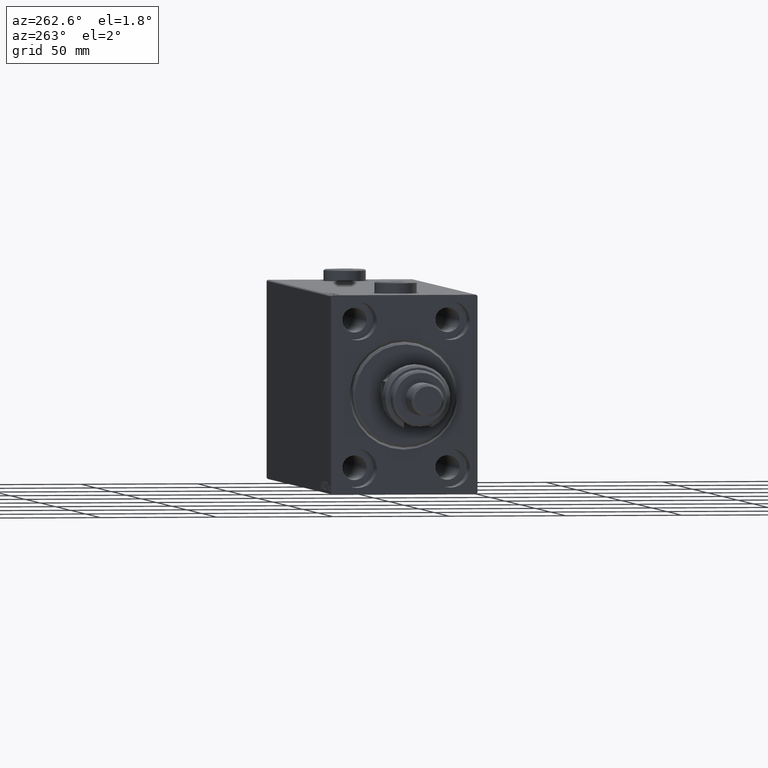
[diagram: clean part render]
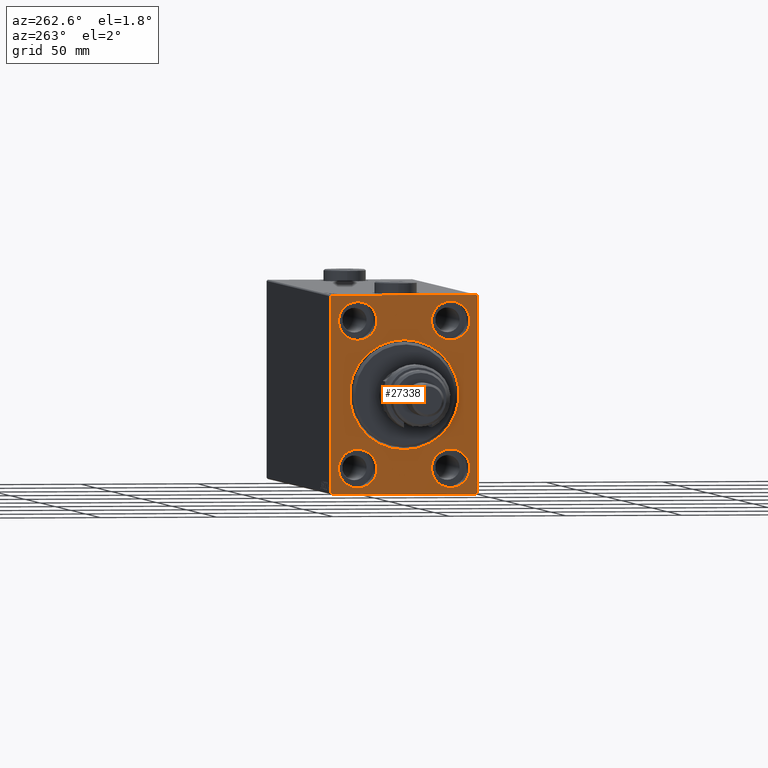
[diagram: same view with one face highlighted and labeled with its STEP entity id]
A machine part, auxiliary view. The second image highlights one B-rep face of the part: STEP entity #27338.
In plain terms, the highlighted planar face has unit normal (1, 0, 0).
Its self-contained STEP definition (entity closure, byte-faithful):
#203 = DIRECTION ( 'NONE',  ( -1.000000000000000000, 0.000000000000000000, 0.000000000000000000 ) ) ;
#293 = VERTEX_POINT ( 'NONE', #33978 ) ;
#399 = EDGE_CURVE ( 'NONE', #36126, #10296, #12822, .T. ) ;
#405 = CIRCLE ( 'NONE', #39155, 23.50000000000004619 ) ;
#589 = VERTEX_POINT ( 'NONE', #38031 ) ;
#735 = DIRECTION ( 'NONE',  ( 0.000000000000000000, -1.000000000000000000, -2.202823461557850341E-16 ) ) ;
#756 = CARTESIAN_POINT ( 'NONE',  ( 0.000000000000000000, -31.50000000000000000, 41.99999999999999289 ) ) ;
#989 = LINE ( 'NONE', #756, #32161 ) ;
#1045 = DIRECTION ( 'NONE',  ( -1.000000000000000000, 0.000000000000000000, 0.000000000000000000 ) ) ;
#1162 = AXIS2_PLACEMENT_3D ( 'NONE', #41112, #34301, #19476 ) ;
#1207 = FACE_OUTER_BOUND ( 'NONE', #15142, .T. ) ;
#2451 = CARTESIAN_POINT ( 'NONE',  ( 0.000000000000000000, 31.00000000000000000, 42.50000000000000711 ) ) ;
#2563 = EDGE_LOOP ( 'NONE', ( #8548, #21582 ) ) ;
#2828 = EDGE_CURVE ( 'NONE', #29949, #8587, #8355, .T. ) ;
#3185 = ORIENTED_EDGE ( 'NONE', *, *, #21572, .T. ) ;
#3813 = DIRECTION ( 'NONE',  ( 0.000000000000000000, 1.000000000000000000, 0.000000000000000000 ) ) ;
#3814 = CARTESIAN_POINT ( 'NONE',  ( 0.000000000000000000, 31.00000000000000000, 42.50000000000000711 ) ) ;
#3982 = DIRECTION ( 'NONE',  ( 0.000000000000000000, 0.000000000000000000, 1.000000000000000000 ) ) ;
#4598 = VECTOR ( 'NONE', #3813, 1000.000000000000000 ) ;
#5013 = AXIS2_PLACEMENT_3D ( 'NONE', #28249, #6650, #25577 ) ;
#5981 = CARTESIAN_POINT ( 'NONE',  ( 0.000000000000000000, -31.50000000000000000, 41.99999999999999289 ) ) ;
#6068 = AXIS2_PLACEMENT_3D ( 'NONE', #16097, #8827, #45745 ) ;
#6070 = CIRCLE ( 'NONE', #33214, 8.250000000000000000 ) ;
#6180 = DIRECTION ( 'NONE',  ( 1.000000000000000000, 0.000000000000000000, 0.000000000000000000 ) ) ;
#6650 = DIRECTION ( 'NONE',  ( -1.000000000000000000, 0.000000000000000000, 0.000000000000000000 ) ) ;
#6817 = EDGE_CURVE ( 'NONE', #33745, #17738, #42586, .T. ) ;
#6945 = ORIENTED_EDGE ( 'NONE', *, *, #29003, .F. ) ;
#7007 = ORIENTED_EDGE ( 'NONE', *, *, #399, .F. ) ;
#7136 = DIRECTION ( 'NONE',  ( -0.000000000000000000, -0.7071067811865474617, 0.7071067811865474617 ) ) ;
#7291 = VERTEX_POINT ( 'NONE', #12604 ) ;
#8207 = CARTESIAN_POINT ( 'NONE',  ( 0.000000000000000000, 19.99999999999999645, -31.49999999999999289 ) ) ;
#8256 = DIRECTION ( 'NONE',  ( -1.000000000000000000, 0.000000000000000000, 0.000000000000000000 ) ) ;
#8355 = CIRCLE ( 'NONE', #42465, 8.249999999999992895 ) ;
#8393 = AXIS2_PLACEMENT_3D ( 'NONE', #8207, #203, #44634 ) ;
#8548 = ORIENTED_EDGE ( 'NONE', *, *, #6817, .F. ) ;
#8587 = VERTEX_POINT ( 'NONE', #24162 ) ;
#8613 = EDGE_LOOP ( 'NONE', ( #23670, #27057 ) ) ;
#8827 = DIRECTION ( 'NONE',  ( -1.000000000000000000, 0.000000000000000000, 0.000000000000000000 ) ) ;
#8983 = FACE_BOUND ( 'NONE', #8613, .T. ) ;
#9410 = VERTEX_POINT ( 'NONE', #42624 ) ;
#9726 = VERTEX_POINT ( 'NONE', #3814 ) ;
#10296 = VERTEX_POINT ( 'NONE', #36720 ) ;
#11022 = CARTESIAN_POINT ( 'NONE',  ( 0.000000000000000000, 20.00000000000000355, 31.50000000000000000 ) ) ;
#12135 = LINE ( 'NONE', #34007, #23804 ) ;
#12583 = LINE ( 'NONE', #31522, #41473 ) ;
#12604 = CARTESIAN_POINT ( 'NONE',  ( 0.000000000000000000, -31.50000000000000000, -42.00000000000000711 ) ) ;
#12619 = DIRECTION ( 'NONE',  ( 0.000000000000000000, 0.000000000000000000, -1.000000000000000000 ) ) ;
#12822 = LINE ( 'NONE', #35423, #18356 ) ;
#13825 = CIRCLE ( 'NONE', #6068, 8.249999999999992895 ) ;
#13899 = VERTEX_POINT ( 'NONE', #30514 ) ;
#13918 = AXIS2_PLACEMENT_3D ( 'NONE', #41999, #8256, #19171 ) ;
#14039 = VERTEX_POINT ( 'NONE', #5981 ) ;
#14664 = AXIS2_PLACEMENT_3D ( 'NONE', #30429, #1045, #3982 ) ;
#15142 = EDGE_LOOP ( 'NONE', ( #45192, #19046, #34261, #31589, #7007, #3185, #31913, #28680 ) ) ;
#15404 = VERTEX_POINT ( 'NONE', #21651 ) ;
#15762 = FACE_BOUND ( 'NONE', #41410, .T. ) ;
#15931 = CARTESIAN_POINT ( 'NONE',  ( 0.000000000000000000, 31.50000000000001421, -42.00000000000000711 ) ) ;
#15942 = EDGE_CURVE ( 'NONE', #24186, #7291, #44276, .T. ) ;
#16097 = CARTESIAN_POINT ( 'NONE',  ( 0.000000000000000000, -19.99999999999999645, 31.50000000000000000 ) ) ;
#17454 = CIRCLE ( 'NONE', #1162, 23.50000000000004619 ) ;
#17738 = VERTEX_POINT ( 'NONE', #45072 ) ;
#18155 = CARTESIAN_POINT ( 'NONE',  ( 0.000000000000000000, -31.50000000000000000, 42.49999999999999289 ) ) ;
#18356 = VECTOR ( 'NONE', #42939, 1000.000000000000000 ) ;
#18935 = CIRCLE ( 'NONE', #5013, 8.250000000000000000 ) ;
#19028 = VERTEX_POINT ( 'NONE', #46191 ) ;
#19046 = ORIENTED_EDGE ( 'NONE', *, *, #21230, .T. ) ;
#19171 = DIRECTION ( 'NONE',  ( 0.000000000000000000, 0.000000000000000000, 1.000000000000000000 ) ) ;
#19315 = VECTOR ( 'NONE', #33463, 1000.000000000000000 ) ;
#19476 = DIRECTION ( 'NONE',  ( 0.000000000000000000, 0.000000000000000000, -1.000000000000000000 ) ) ;
#19619 = DIRECTION ( 'NONE',  ( 0.000000000000000000, -0.7071067811865474617, -0.7071067811865474617 ) ) ;
#19900 = FACE_BOUND ( 'NONE', #2563, .T. ) ;
#19930 = CARTESIAN_POINT ( 'NONE',  ( 0.000000000000000000, 20.00000000000000355, 31.50000000000000000 ) ) ;
#20899 = CIRCLE ( 'NONE', #13918, 8.250000000000000000 ) ;
#21230 = EDGE_CURVE ( 'NONE', #14039, #28282, #989, .T. ) ;
#21572 = EDGE_CURVE ( 'NONE', #36126, #25426, #12583, .T. ) ;
#21582 = ORIENTED_EDGE ( 'NONE', *, *, #29653, .F. ) ;
#21651 = CARTESIAN_POINT ( 'NONE',  ( 0.000000000000000000, -20.00000000000000355, -39.74999999999999289 ) ) ;
#22241 = EDGE_LOOP ( 'NONE', ( #45085, #26752 ) ) ;
#22283 = AXIS2_PLACEMENT_3D ( 'NONE', #34971, #41769, #12619 ) ;
#22294 = LINE ( 'NONE', #18155, #19315 ) ;
#22414 = VECTOR ( 'NONE', #42530, 1000.000000000000114 ) ;
#22739 = CARTESIAN_POINT ( 'NONE',  ( 0.000000000000000000, -31.50000000000000000, -42.50000000000000711 ) ) ;
#23339 = DIRECTION ( 'NONE',  ( -1.000000000000000000, 0.000000000000000000, 0.000000000000000000 ) ) ;
#23670 = ORIENTED_EDGE ( 'NONE', *, *, #39731, .T. ) ;
#23735 = DIRECTION ( 'NONE',  ( -1.000000000000000000, 0.000000000000000000, 0.000000000000000000 ) ) ;
#23804 = VECTOR ( 'NONE', #735, 1000.000000000000000 ) ;
#24162 = CARTESIAN_POINT ( 'NONE',  ( 0.000000000000000000, 20.00000000000000355, 39.74999999999999289 ) ) ;
#24186 = VERTEX_POINT ( 'NONE', #33125 ) ;
#24366 = VECTOR ( 'NONE', #7136, 1000.000000000000114 ) ;
#24452 = DIRECTION ( 'NONE',  ( 0.000000000000000000, 0.000000000000000000, 1.000000000000000000 ) ) ;
#25426 = VERTEX_POINT ( 'NONE', #39340 ) ;
#25577 = DIRECTION ( 'NONE',  ( 0.000000000000000000, 0.000000000000000000, 1.000000000000000000 ) ) ;
#25585 = CARTESIAN_POINT ( 'NONE',  ( 0.000000000000000000, -31.00000000000000000, -42.50000000000000711 ) ) ;
#25823 = DIRECTION ( 'NONE',  ( -1.000000000000000000, 0.000000000000000000, 0.000000000000000000 ) ) ;
#26694 = FACE_BOUND ( 'NONE', #46599, .T. ) ;
#26752 = ORIENTED_EDGE ( 'NONE', *, *, #47818, .F. ) ;
#26973 = AXIS2_PLACEMENT_3D ( 'NONE', #11022, #25823, #40641 ) ;
#27057 = ORIENTED_EDGE ( 'NONE', *, *, #39529, .T. ) ;
#27338 = ADVANCED_FACE ( 'NONE', ( #8983, #38352, #19900, #15762, #26694, #1207 ), #41518, .F. ) ;
#27394 = EDGE_CURVE ( 'NONE', #9726, #28282, #12135, .T. ) ;
#28249 = CARTESIAN_POINT ( 'NONE',  ( 0.000000000000000000, 19.99999999999999645, -31.49999999999999289 ) ) ;
#28282 = VERTEX_POINT ( 'NONE', #36169 ) ;
#28680 = ORIENTED_EDGE ( 'NONE', *, *, #15942, .T. ) ;
#29003 = EDGE_CURVE ( 'NONE', #8587, #29949, #37079, .T. ) ;
#29653 = EDGE_CURVE ( 'NONE', #17738, #33745, #13825, .T. ) ;
#29949 = VERTEX_POINT ( 'NONE', #47420 ) ;
#30146 = DIRECTION ( 'NONE',  ( 0.000000000000000000, 0.000000000000000000, 1.000000000000000000 ) ) ;
#30429 = CARTESIAN_POINT ( 'NONE',  ( 0.000000000000000000, -19.99999999999999645, 31.50000000000000000 ) ) ;
#30514 = CARTESIAN_POINT ( 'NONE',  ( 0.000000000000000000, 19.99999999999999645, -23.24999999999999289 ) ) ;
#31522 = CARTESIAN_POINT ( 'NONE',  ( 0.000000000000000000, 31.50000000000001421, -42.00000000000000711 ) ) ;
#31589 = ORIENTED_EDGE ( 'NONE', *, *, #35028, .T. ) ;
#31836 = LINE ( 'NONE', #2451, #22414 ) ;
#31913 = ORIENTED_EDGE ( 'NONE', *, *, #32794, .F. ) ;
#32161 = VECTOR ( 'NONE', #37419, 1000.000000000000114 ) ;
#32566 = ORIENTED_EDGE ( 'NONE', *, *, #36739, .F. ) ;
#32794 = EDGE_CURVE ( 'NONE', #24186, #25426, #37076, .T. ) ;
#33125 = CARTESIAN_POINT ( 'NONE',  ( 0.000000000000000000, -31.00000000000000000, -42.50000000000000711 ) ) ;
#33214 = AXIS2_PLACEMENT_3D ( 'NONE', #39023, #23735, #24452 ) ;
#33463 = DIRECTION ( 'NONE',  ( 0.000000000000000000, 0.000000000000000000, -1.000000000000000000 ) ) ;
#33745 = VERTEX_POINT ( 'NONE', #44856 ) ;
#33978 = CARTESIAN_POINT ( 'NONE',  ( 0.000000000000000000, 19.99999999999999645, -39.74999999999999289 ) ) ;
#34007 = CARTESIAN_POINT ( 'NONE',  ( 0.000000000000000000, 31.50000000000000000, 42.50000000000000711 ) ) ;
#34261 = ORIENTED_EDGE ( 'NONE', *, *, #27394, .F. ) ;
#34301 = DIRECTION ( 'NONE',  ( 1.000000000000000000, 0.000000000000000000, 0.000000000000000000 ) ) ;
#34971 = CARTESIAN_POINT ( 'NONE',  ( 0.000000000000000000, 0.000000000000000000, 0.000000000000000000 ) ) ;
#35028 = EDGE_CURVE ( 'NONE', #9726, #10296, #31836, .T. ) ;
#35423 = CARTESIAN_POINT ( 'NONE',  ( 0.000000000000000000, 31.50000000000001421, -42.50000000000000711 ) ) ;
#36025 = EDGE_CURVE ( 'NONE', #14039, #7291, #22294, .T. ) ;
#36126 = VERTEX_POINT ( 'NONE', #15931 ) ;
#36169 = CARTESIAN_POINT ( 'NONE',  ( 0.000000000000000000, -31.00000000000000000, 42.49999999999999289 ) ) ;
#36720 = CARTESIAN_POINT ( 'NONE',  ( 0.000000000000000000, 31.50000000000000000, 42.00000000000000711 ) ) ;
#36739 = EDGE_CURVE ( 'NONE', #19028, #15404, #20899, .T. ) ;
#37076 = LINE ( 'NONE', #22739, #4598 ) ;
#37079 = CIRCLE ( 'NONE', #26973, 8.249999999999992895 ) ;
#37419 = DIRECTION ( 'NONE',  ( -0.000000000000000000, 0.7071067811865474617, 0.7071067811865474617 ) ) ;
#38031 = CARTESIAN_POINT ( 'NONE',  ( 0.000000000000000000, 2.877919977996285448E-15, -23.50000000000004619 ) ) ;
#38053 = DIRECTION ( 'NONE',  ( 0.000000000000000000, 0.000000000000000000, -1.000000000000000000 ) ) ;
#38352 = FACE_BOUND ( 'NONE', #22241, .T. ) ;
#38651 = ORIENTED_EDGE ( 'NONE', *, *, #47931, .F. ) ;
#38882 = EDGE_CURVE ( 'NONE', #13899, #293, #18935, .T. ) ;
#39023 = CARTESIAN_POINT ( 'NONE',  ( 0.000000000000000000, -20.00000000000000355, -31.49999999999999289 ) ) ;
#39155 = AXIS2_PLACEMENT_3D ( 'NONE', #39442, #6180, #38053 ) ;
#39340 = CARTESIAN_POINT ( 'NONE',  ( 0.000000000000000000, 31.00000000000001421, -42.50000000000000711 ) ) ;
#39442 = CARTESIAN_POINT ( 'NONE',  ( 0.000000000000000000, 0.000000000000000000, 0.000000000000000000 ) ) ;
#39529 = EDGE_CURVE ( 'NONE', #589, #9410, #405, .T. ) ;
#39731 = EDGE_CURVE ( 'NONE', #9410, #589, #17454, .T. ) ;
#40641 = DIRECTION ( 'NONE',  ( 0.000000000000000000, 0.000000000000000000, 1.000000000000000000 ) ) ;
#41112 = CARTESIAN_POINT ( 'NONE',  ( 0.000000000000000000, 0.000000000000000000, 0.000000000000000000 ) ) ;
#41410 = EDGE_LOOP ( 'NONE', ( #6945, #42565 ) ) ;
#41473 = VECTOR ( 'NONE', #19619, 1000.000000000000114 ) ;
#41518 = PLANE ( 'NONE',  #22283 ) ;
#41728 = CIRCLE ( 'NONE', #8393, 8.250000000000000000 ) ;
#41769 = DIRECTION ( 'NONE',  ( 1.000000000000000000, 0.000000000000000000, 0.000000000000000000 ) ) ;
#41999 = CARTESIAN_POINT ( 'NONE',  ( 0.000000000000000000, -20.00000000000000355, -31.49999999999999289 ) ) ;
#42465 = AXIS2_PLACEMENT_3D ( 'NONE', #19930, #23339, #30146 ) ;
#42530 = DIRECTION ( 'NONE',  ( -0.000000000000000000, 0.7071067811865474617, -0.7071067811865474617 ) ) ;
#42565 = ORIENTED_EDGE ( 'NONE', *, *, #2828, .F. ) ;
#42586 = CIRCLE ( 'NONE', #14664, 8.249999999999992895 ) ;
#42624 = CARTESIAN_POINT ( 'NONE',  ( 0.000000000000000000, 0.000000000000000000, 23.50000000000004619 ) ) ;
#42939 = DIRECTION ( 'NONE',  ( 0.000000000000000000, -1.632680918566406300E-16, 1.000000000000000000 ) ) ;
#44276 = LINE ( 'NONE', #25585, #24366 ) ;
#44634 = DIRECTION ( 'NONE',  ( 0.000000000000000000, 0.000000000000000000, 1.000000000000000000 ) ) ;
#44856 = CARTESIAN_POINT ( 'NONE',  ( 0.000000000000000000, -19.99999999999999645, 39.74999999999999289 ) ) ;
#45072 = CARTESIAN_POINT ( 'NONE',  ( 0.000000000000000000, -19.99999999999999645, 23.25000000000000355 ) ) ;
#45085 = ORIENTED_EDGE ( 'NONE', *, *, #38882, .F. ) ;
#45192 = ORIENTED_EDGE ( 'NONE', *, *, #36025, .F. ) ;
#45745 = DIRECTION ( 'NONE',  ( 0.000000000000000000, 0.000000000000000000, 1.000000000000000000 ) ) ;
#46191 = CARTESIAN_POINT ( 'NONE',  ( 0.000000000000000000, -20.00000000000000355, -23.24999999999999289 ) ) ;
#46599 = EDGE_LOOP ( 'NONE', ( #32566, #38651 ) ) ;
#47420 = CARTESIAN_POINT ( 'NONE',  ( 0.000000000000000000, 20.00000000000000355, 23.25000000000000355 ) ) ;
#47818 = EDGE_CURVE ( 'NONE', #293, #13899, #41728, .T. ) ;
#47931 = EDGE_CURVE ( 'NONE', #15404, #19028, #6070, .T. ) ;